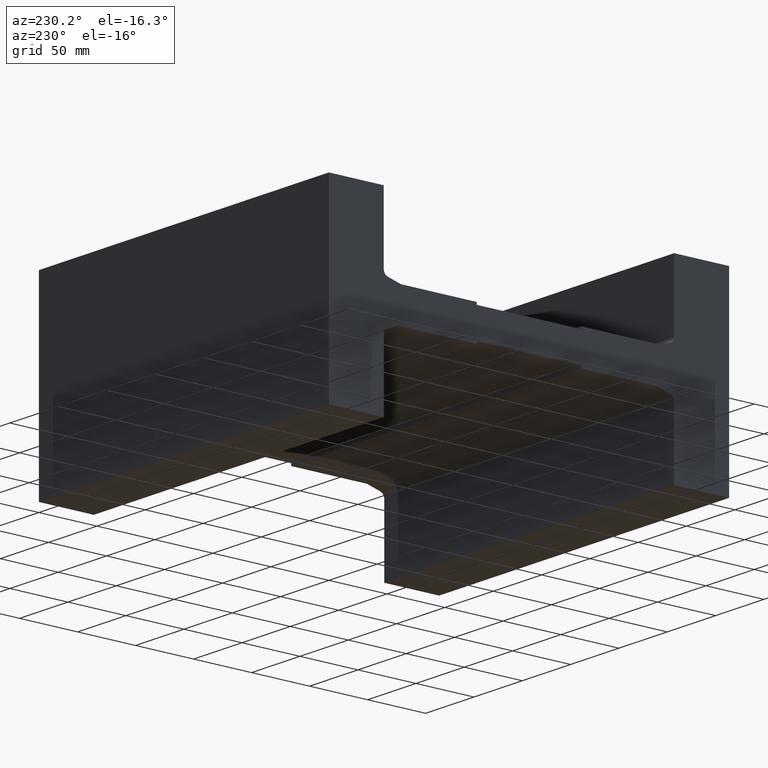
[diagram: clean part render]
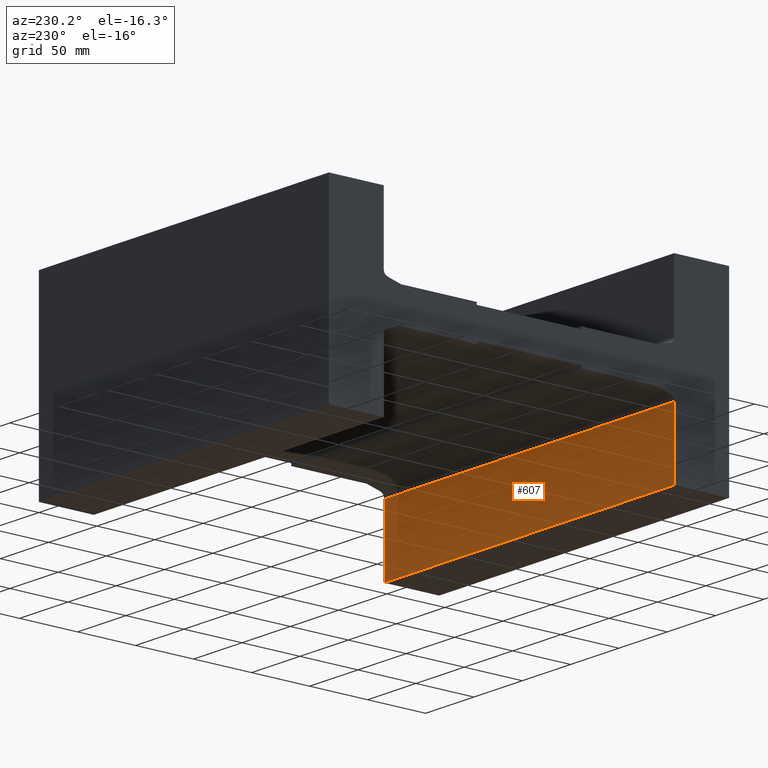
[diagram: same view with one face highlighted and labeled with its STEP entity id]
A machine part, auxiliary view. The second image highlights one B-rep face of the part: STEP entity #607.
In plain terms, the highlighted planar face has unit normal (0, 1, -0).
Its self-contained STEP definition (entity closure, byte-faithful):
#16=PLANE('',#661);
#44=FACE_OUTER_BOUND('',#74,.T.);
#74=EDGE_LOOP('',(#416,#417,#418,#419));
#101=LINE('',#854,#177);
#110=LINE('',#878,#186);
#111=LINE('',#880,#187);
#112=LINE('',#881,#188);
#177=VECTOR('',#700,10.);
#186=VECTOR('',#721,10.);
#187=VECTOR('',#722,10.);
#188=VECTOR('',#723,10.);
#260=VERTEX_POINT('',#847);
#263=VERTEX_POINT('',#852);
#272=VERTEX_POINT('',#877);
#273=VERTEX_POINT('',#879);
#319=EDGE_CURVE('',#263,#260,#101,.T.);
#330=EDGE_CURVE('',#263,#272,#110,.T.);
#331=EDGE_CURVE('',#273,#272,#111,.T.);
#332=EDGE_CURVE('',#260,#273,#112,.T.);
#416=ORIENTED_EDGE('',*,*,#319,.F.);
#417=ORIENTED_EDGE('',*,*,#330,.T.);
#418=ORIENTED_EDGE('',*,*,#331,.F.);
#419=ORIENTED_EDGE('',*,*,#332,.F.);
#607=ADVANCED_FACE('',(#44),#16,.T.);
#661=AXIS2_PLACEMENT_3D('',#876,#719,#720);
#700=DIRECTION('',(-1.,1.69176980447317E-15,-4.39325214218709E-16));
#719=DIRECTION('center_axis',(1.69176980447317E-15,1.,-1.20052903058125E-15));
#720=DIRECTION('ref_axis',(-4.39325214218707E-16,1.20052903058125E-15,1.));
#721=DIRECTION('',(4.39325214218707E-16,-1.20052903058125E-15,-1.));
#722=DIRECTION('',(1.,-1.69176980447317E-15,4.39325214218709E-16));
#723=DIRECTION('',(4.39325214218707E-16,-1.20052903058125E-15,-1.));
#847=CARTESIAN_POINT('',(-2.78210606731001E-13,-297.700000000001,-22.2024074287667));
#852=CARTESIAN_POINT('',(300.,-297.700000000002,-22.2024074287665));
#854=CARTESIAN_POINT('',(-2.78210606731001E-13,-297.700000000001,-22.2024074287667));
#876=CARTESIAN_POINT('Origin',(-2.79828715979176E-13,-297.700000000001,
-18.5192378864677));
#877=CARTESIAN_POINT('',(300.,-297.700000000002,-80.000000000001));
#878=CARTESIAN_POINT('',(300.,-297.700000000002,-18.5192378864675));
#879=CARTESIAN_POINT('',(-2.52818666993318E-13,-297.700000000001,-80.0000000000011));
#880=CARTESIAN_POINT('',(-2.52818666993318E-13,-297.700000000001,-80.0000000000011));
#881=CARTESIAN_POINT('',(-2.79828715979176E-13,-297.700000000001,-18.5192378864677));